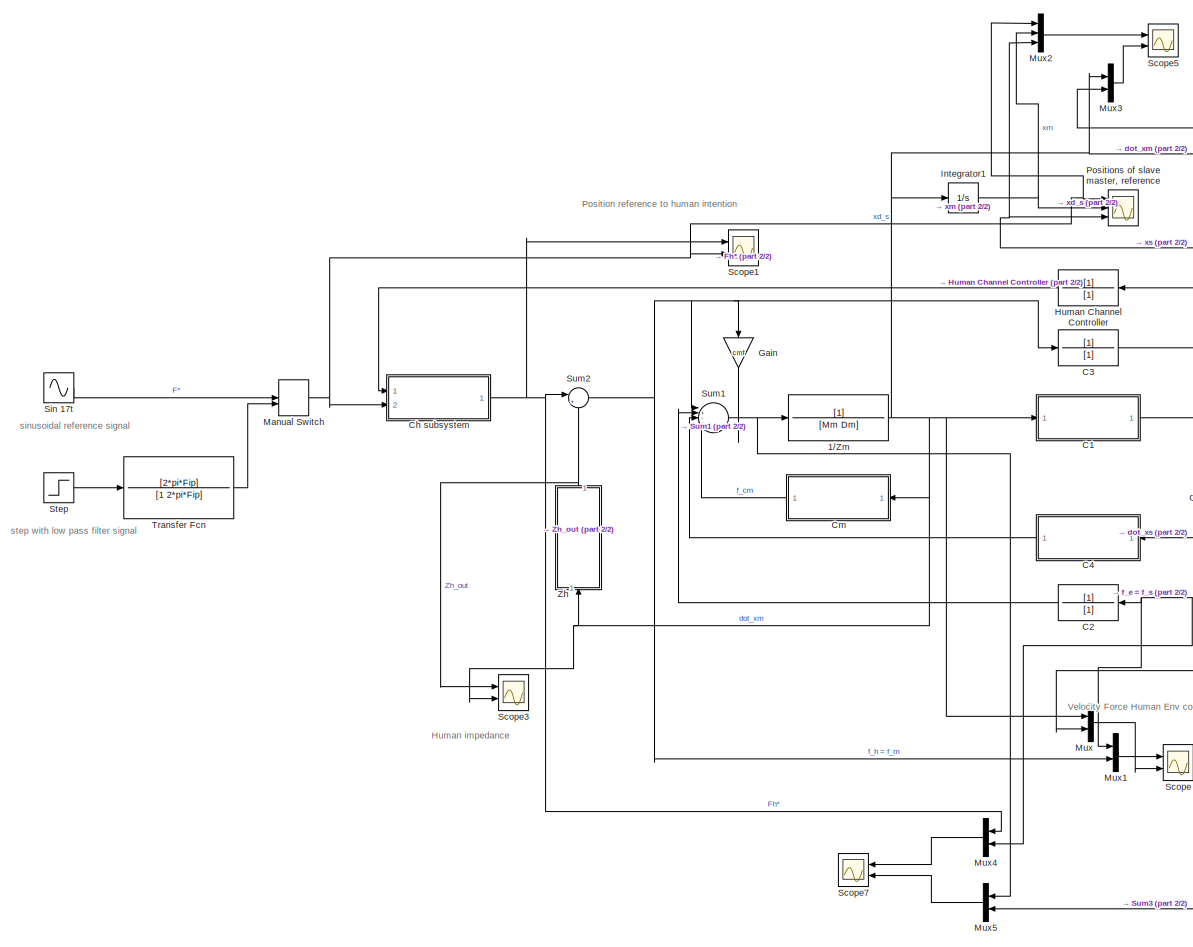
[diagram: root canvas - part 1/2, left side, full height]
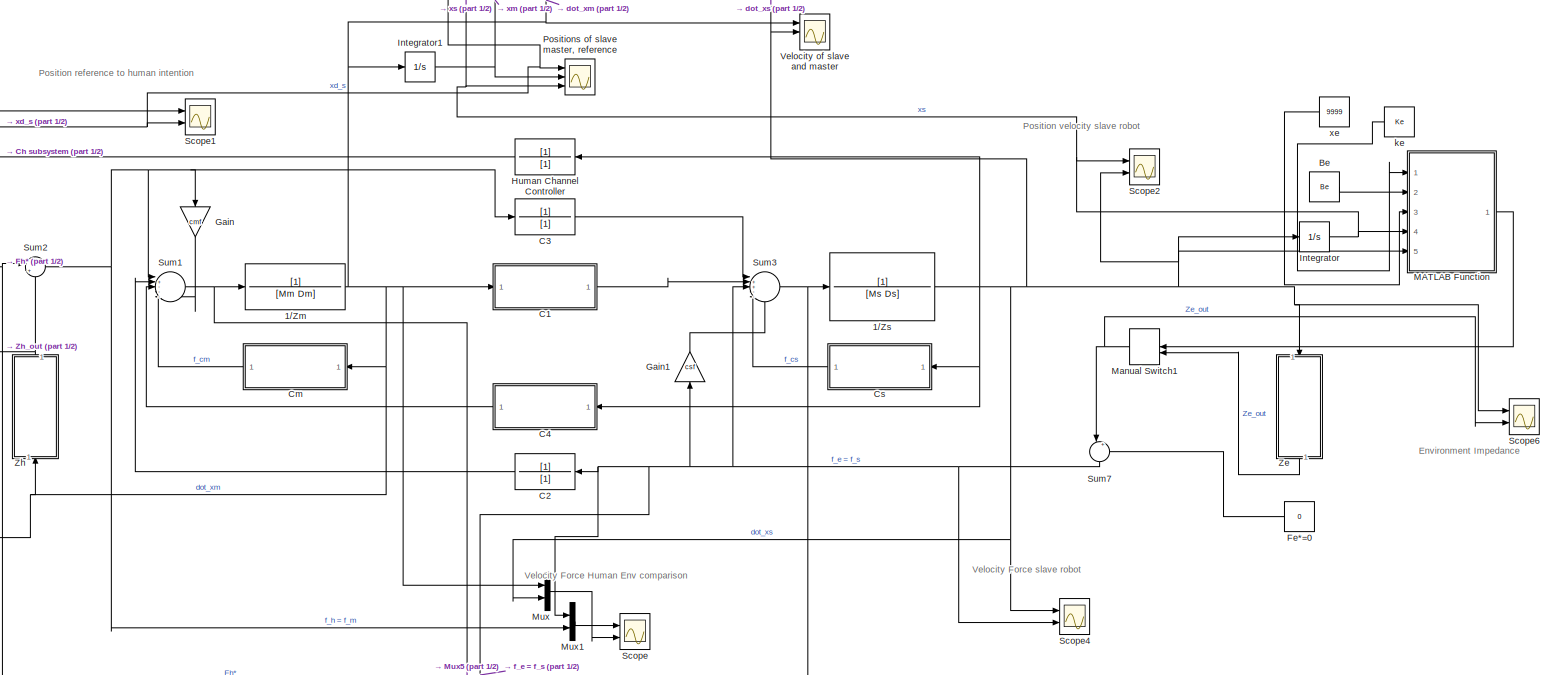
[diagram: root canvas - part 2/2, full width, middle band]
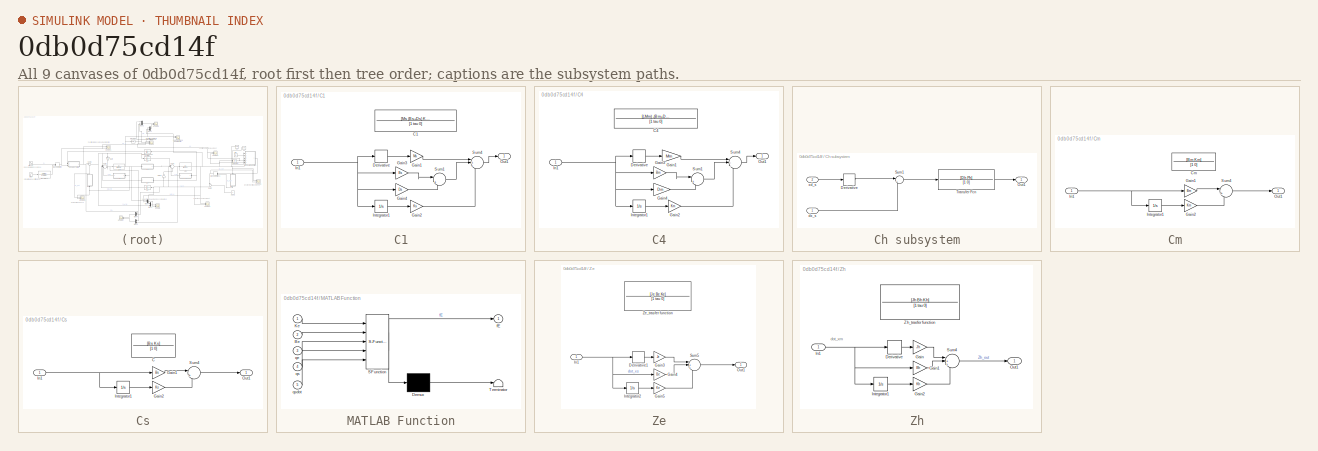
[diagram: thumbnail index - all 9 canvases of the model, root first then tree order]
MODEL slx_0db0d75cd14f
KIND model
CONFIG AbsTol = auto
CONFIG EnableMultiTasking = off
CONFIG FixedStep = Ts
CONFIG MaxStep = auto
CONFIG MinStep = auto
CONFIG RelTol = 1e-3
CONFIG SampleTimeConstraint = Unconstrained
CONFIG SolverName = VariableStepAuto
CONFIG StartTime = 0.0
CONFIG StopTime = 4.0
BLOCK [TransferFcn] 1//Zm
  Denominator = [Mm Dm]
  NameLocation = top
BLOCK [TransferFcn] 1//Zs
  Denominator = [Ms Ds]
  NameLocation = top
BLOCK [Constant] Be
  NameLocation = top
  Value = Be
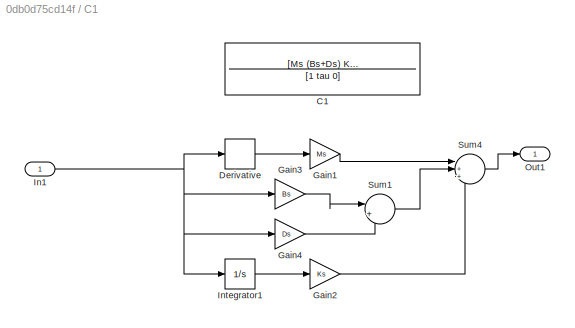
BLOCK [SubSystem] C1
  Ports = [1, 1]
  RequestExecContextInheritance = off
BLOCK [TransferFcn] C1/C1
  Commented = on
  Denominator = [1 tau 0]
  Numerator = [Ms (Bs+Ds) Ks]
BLOCK [Derivative] C1/Derivative
BLOCK [Gain] C1/Gain1
  Gain = Ms
BLOCK [Gain] C1/Gain2
  Gain = Ks
BLOCK [Gain] C1/Gain3
  Gain = Bs
BLOCK [Gain] C1/Gain4
  Gain = Ds
BLOCK [Inport] C1/In1
BLOCK [Integrator] C1/Integrator1
  Ports = [1, 1]
BLOCK [Outport] C1/Out1
BLOCK [Sum] C1/Sum1
  Inputs = |++
  Ports = [2, 1]
BLOCK [Sum] C1/Sum4
  Inputs = |+++
  Ports = [3, 1]
BLOCK [TransferFcn] C2
  Denominator = [1]
BLOCK [TransferFcn] C3
  Denominator = [1]
  NameLocation = top
BLOCK [SubSystem] C4
  NameLocation = top
  Ports = [1, 1]
  RequestExecContextInheritance = off
BLOCK [TransferFcn] C4/C4
  Commented = on
  Denominator = [1 tau 0]
  NameLocation = top
  Numerator = [(-Mm) -(Bm+Dm) -Km]
BLOCK [Derivative] C4/Derivative
BLOCK [Gain] C4/Gain1
  Gain = Mm
BLOCK [Gain] C4/Gain2
  Gain = Km
BLOCK [Gain] C4/Gain3
  Gain = Bm
BLOCK [Gain] C4/Gain4
  Gain = Dm
BLOCK [Inport] C4/In1
BLOCK [Integrator] C4/Integrator1
  Ports = [1, 1]
BLOCK [Outport] C4/Out1
BLOCK [Sum] C4/Sum1
  Inputs = |++
  Ports = [2, 1]
BLOCK [Sum] C4/Sum4
  Inputs = |---
  Ports = [3, 1]
BLOCK [SubSystem] Ch subsystem
  Ports = [2, 1]
  RequestExecContextInheritance = off
BLOCK [Derivative] Ch subsystem/Derivative
BLOCK [Outport] Ch subsystem/Out1
BLOCK [Sum] Ch subsystem/Sum1
  Inputs = |+-
  Ports = [2, 1]
BLOCK [TransferFcn] Ch subsystem/Transfer Fcn
  Denominator = [1 0]
  Numerator = [Dh Ph]
BLOCK [Inport] Ch subsystem/dx_s
BLOCK [Inport] Ch subsystem/xd_s
  Port = 2
BLOCK [SubSystem] Cm
  NameLocation = top
  Ports = [1, 1]
  RequestExecContextInheritance = off
BLOCK [TransferFcn] Cm/Cm
  Commented = on
  Denominator = [1 0]
  Numerator = [Bm Km]
BLOCK [Gain] Cm/Gain1
  Gain = Bm
BLOCK [Gain] Cm/Gain2
  Gain = Km
BLOCK [Inport] Cm/In1
BLOCK [Integrator] Cm/Integrator1
  Ports = [1, 1]
BLOCK [Outport] Cm/Out1
BLOCK [Sum] Cm/Sum4
  Inputs = |++
  Ports = [2, 1]
BLOCK [SubSystem] Cs
  NameLocation = top
  Ports = [1, 1]
  RequestExecContextInheritance = off
BLOCK [TransferFcn] Cs/C
  Commented = on
  Denominator = [1 0]
  Numerator = [Bs Ks]
BLOCK [Gain] Cs/Gain1
  Gain = Bs
BLOCK [Gain] Cs/Gain2
  Gain = Ks
BLOCK [Inport] Cs/In1
BLOCK [Integrator] Cs/Integrator1
  Ports = [1, 1]
BLOCK [Outport] Cs/Out1
BLOCK [Sum] Cs/Sum4
  Inputs = |++
  Ports = [2, 1]
BLOCK [Constant] Fe*=0
  Value = 0
BLOCK [Gain] Gain
  Gain = cmf
  NameLocation = left
BLOCK [Gain] Gain1
  Gain = csf
  NameLocation = right
BLOCK [TransferFcn] Human Channel Controller
  Denominator = [1]
  NameLocation = top
BLOCK [Integrator] Integrator
  Ports = [1, 1]
BLOCK [Integrator] Integrator1
  Ports = [1, 1]
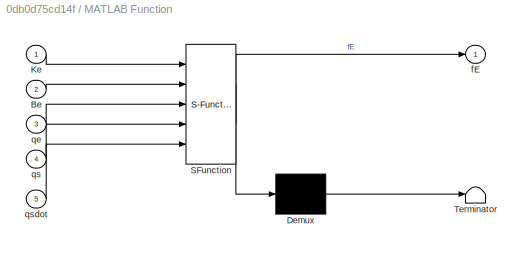
BLOCK [SubSystem] MATLAB Function
  ErrorFcn = Stateflow.Translate.translate
  PermitHierarchicalResolution = ExplicitOnly
  Ports = [5, 1]
  RequestExecContextInheritance = off
  SFBlockType = MATLAB Function
  TreatAsAtomicUnit = on
BLOCK [Demux] MATLAB Function/ Demux 
  Outputs = 1
  Ports = [1, 1]
BLOCK [S-Function] MATLAB Function/ SFunction 
  EnableBusSupport = on
  FunctionName = sf_sfun
  PortCounts = [5 2]
  Ports = [5, 2]
  SFcnIsStateOwnerBlock = off
  SFunctionDeploymentMode = off
  Tag = Stateflow S-Function 2
BLOCK [Terminator] MATLAB Function/ Terminator 
BLOCK [Inport] MATLAB Function/Be
  Port = 2
BLOCK [Inport] MATLAB Function/Ke
BLOCK [Outport] MATLAB Function/fE
BLOCK [Inport] MATLAB Function/qe
  Port = 3
BLOCK [Inport] MATLAB Function/qs
  Port = 4
BLOCK [Inport] MATLAB Function/qsdot
  Port = 5
BLOCK [ManualSwitch] Manual Switch
  CurrentSetting = 0
BLOCK [ManualSwitch] Manual Switch1
  CurrentSetting = 0
  NameLocation = top
BLOCK [Mux] Mux
  DisplayOption = bar
  Inputs = 2
  Ports = [2, 1]
BLOCK [Mux] Mux1
  DisplayOption = bar
  Inputs = 2
  Ports = [2, 1]
BLOCK [Mux] Mux2
  DisplayOption = bar
  Inputs = 3
  Ports = [3, 1]
BLOCK [Mux] Mux3
  DisplayOption = bar
  Inputs = 2
  Ports = [2, 1]
BLOCK [Mux] Mux4
  DisplayOption = bar
  Inputs = 2
  NameLocation = top
  Ports = [2, 1]
BLOCK [Mux] Mux5
  DisplayOption = bar
  Inputs = 2
  NameLocation = top
  Ports = [2, 1]
BLOCK [Scope] Positions of slave master, reference
  Floating = off
  NumInputPorts = 3
  Ports = [3]
  ScopeSpecificationString = Simulink.scopes.TimeScopeBlockCfg('CurrentConfiguration', extmgr.ConfigurationSet(extmgr.Configuration('Core','General UI',true),extmgr.Configuration('Core','Source UI',true),extmgr.Configuration('Sources','WiredSimulink',true,'DataLoggingVariableName','ScopeData1'),extmgr.Configuration('Visuals','Time Domain',true,'SerializedDisplays',{struct('MinYLimReal','-1.25','MaxYLimReal','1.25','YLabelReal...<+1538ch>
BLOCK [Scope] Scope
  Floating = off
  NumInputPorts = 2
  Ports = [2]
  ScopeSpecificationString = Simulink.scopes.TimeScopeBlockCfg('CurrentConfiguration', extmgr.ConfigurationSet(extmgr.Configuration('Core','General UI',true),extmgr.Configuration('Core','Source UI',true),extmgr.Configuration('Sources','WiredSimulink',true),extmgr.Configuration('Visuals','Time Domain',true,'SerializedDisplays',{struct('MinYLimReal','-532.62107','MaxYLimReal','1538.98785','YLabelReal','','MinYLimMag',' 0.00000'...<+2117ch>
BLOCK [Scope] Scope1
  Floating = off
  NumInputPorts = 2
  Ports = [2]
  ScopeSpecificationString = Simulink.scopes.TimeScopeBlockCfg('CurrentConfiguration', extmgr.ConfigurationSet(extmgr.Configuration('Core','General UI',true),extmgr.Configuration('Core','Source UI',true),extmgr.Configuration('Sources','WiredSimulink',true,'DataLoggingVariableName','ScopeData1'),extmgr.Configuration('Visuals','Time Domain',true,'SerializedDisplays',{struct('MinYLimReal','-62.49999','MaxYLimReal','62.5','YLabel...<+1548ch>
BLOCK [Scope] Scope2
  Floating = off
  NumInputPorts = 2
  Ports = [2]
  ScopeSpecificationString = Simulink.scopes.TimeScopeBlockCfg('CurrentConfiguration', extmgr.ConfigurationSet(extmgr.Configuration('Core','General UI',true),extmgr.Configuration('Core','Source UI',true),extmgr.Configuration('Sources','WiredSimulink',true,'DataLoggingVariableName','ScopeData2'),extmgr.Configuration('Visuals','Time Domain',true,'SerializedDisplays',{struct('MinYLimReal','-0.33462','MaxYLimReal','0.33352','YLab...<+2108ch>
BLOCK [Scope] Scope3
  Floating = off
  NumInputPorts = 2
  Ports = [2]
  ScopeSpecificationString = Simulink.scopes.TimeScopeBlockCfg('CurrentConfiguration', extmgr.ConfigurationSet(extmgr.Configuration('Core','General UI',true),extmgr.Configuration('Core','Source UI',true),extmgr.Configuration('Sources','WiredSimulink',true,'DataLoggingVariableName','ScopeData1'),extmgr.Configuration('Visuals','Time Domain',true,'SerializedDisplays',{struct('MinYLimReal','-2730.40661','MaxYLimReal','7284.05037'...<+2134ch>
BLOCK [Scope] Scope4
  Floating = off
  NumInputPorts = 2
  Ports = [2]
  ScopeSpecificationString = Simulink.scopes.TimeScopeBlockCfg('CurrentConfiguration', extmgr.ConfigurationSet(extmgr.Configuration('Core','General UI',true),extmgr.Configuration('Core','Source UI',true),extmgr.Configuration('Sources','WiredSimulink',true,'DataLoggingVariableName','ScopeData1'),extmgr.Configuration('Visuals','Time Domain',true,'SerializedDisplays',{struct('MinYLimReal','-7.24979','MaxYLimReal','7.39847','YLab...<+2126ch>
BLOCK [Scope] Scope5
  Floating = off
  NumInputPorts = 2
  Ports = [2]
  ScopeSpecificationString = Simulink.scopes.TimeScopeBlockCfg('CurrentConfiguration', extmgr.ConfigurationSet(extmgr.Configuration('Core','General UI',true,'FigureColor',[0.941176470588235 0.941176470588235 0.941176470588235]),extmgr.Configuration('Core','Source UI',true),extmgr.Configuration('Sources','WiredSimulink',true,'DataLoggingVariableName','ScopeData2'),extmgr.Configuration('Visuals','Time Domain',true,'SerializedDi...<+2796ch>
BLOCK [Scope] Scope6
  Floating = off
  NumInputPorts = 2
  Ports = [2]
  ScopeSpecificationString = Simulink.scopes.TimeScopeBlockCfg('CurrentConfiguration', extmgr.ConfigurationSet(extmgr.Configuration('Core','General UI',true),extmgr.Configuration('Core','Source UI',true),extmgr.Configuration('Sources','WiredSimulink',true,'DataLoggingVariableName','ScopeData2'),extmgr.Configuration('Visuals','Time Domain',true,'SerializedDisplays',{struct('MinYLimReal','-1.1305','MaxYLimReal','2.02022','YLabe...<+2126ch>
BLOCK [Scope] Scope7
  Floating = off
  NameLocation = top
  NumInputPorts = 2
  Ports = [2]
  ScopeSpecificationString = Simulink.scopes.TimeScopeBlockCfg('CurrentConfiguration', extmgr.ConfigurationSet(extmgr.Configuration('Core','General UI',true,'FigureColor',[0.941176470588235 0.941176470588235 0.941176470588235]),extmgr.Configuration('Core','Source UI',true),extmgr.Configuration('Sources','WiredSimulink',true,'DataLoggingVariableName','ScopeData1'),extmgr.Configuration('Visuals','Time Domain',true,'SerializedDi...<+2779ch>
BLOCK [Sin] Sin 17t
  Amplitude = A
  Frequency = 2*pi*Fc
  Ports = [0, 1]
  SampleTime = 0
BLOCK [Step] Step
  After = A
  SampleTime = 0
BLOCK [Sum] Sum1
  Inputs = |+---+
  Ports = [5, 1]
BLOCK [Sum] Sum2
  Inputs = |+-
  Ports = [2, 1]
BLOCK [Sum] Sum3
  Inputs = |++---
  Ports = [5, 1]
BLOCK [Sum] Sum7
  Inputs = |++
  NameLocation = right
  Ports = [2, 1]
BLOCK [TransferFcn] Transfer Fcn
  Denominator = [1 2*pi*Fip]
  Numerator = [2*pi*Fip]
BLOCK [Scope] Velocity of slave and master
  Floating = off
  NumInputPorts = 3
  Ports = [3]
  ScopeSpecificationString = Simulink.scopes.TimeScopeBlockCfg('CurrentConfiguration', extmgr.ConfigurationSet(extmgr.Configuration('Core','General UI',true),extmgr.Configuration('Core','Source UI',true),extmgr.Configuration('Sources','WiredSimulink',true,'DataLoggingVariableName','ScopeData2'),extmgr.Configuration('Visuals','Time Domain',true,'SerializedDisplays',{struct('MinYLimReal','-7.34585','MaxYLimReal','7.40915','YLab...<+1573ch>
BLOCK [SubSystem] Ze
  NameLocation = left
  Ports = [1, 1]
  RequestExecContextInheritance = off
BLOCK [Derivative] Ze/Derivative1
BLOCK [Gain] Ze/Gain3
  Gain = Je
BLOCK [Gain] Ze/Gain4
  Gain = Be
BLOCK [Gain] Ze/Gain5
  Gain = Ke
BLOCK [Inport] Ze/In1
BLOCK [Integrator] Ze/Integrator2
  Ports = [1, 1]
BLOCK [Outport] Ze/Out1
BLOCK [Sum] Ze/Sum5
  Inputs = |+++
  Ports = [3, 1]
BLOCK [TransferFcn] Ze/Ze_trasfer function
  Commented = on
  Denominator = [1 tau 0]
  NameLocation = right
  Numerator = [Je Be Ke]
BLOCK [SubSystem] Zh
  NameLocation = right
  Ports = [1, 1]
  RequestExecContextInheritance = off
BLOCK [Derivative] Zh/Derivative
BLOCK [Gain] Zh/Gain
  Gain = Jh
BLOCK [Gain] Zh/Gain1
  Gain = Bh
BLOCK [Gain] Zh/Gain2
  Gain = Kh
BLOCK [Inport] Zh/In1
BLOCK [Integrator] Zh/Integrator1
  Ports = [1, 1]
BLOCK [Outport] Zh/Out1
BLOCK [Sum] Zh/Sum4
  Inputs = |+++
  Ports = [3, 1]
BLOCK [TransferFcn] Zh/Zh_trasfer function
  Commented = on
  Denominator = [1 tau 0]
  NameLocation = right
  Numerator = [Jh Bh Kh]
BLOCK [Constant] ke
  Value = Ke
BLOCK [Constant] xe
  Value = 9999
ANNOTATION (root): sinusoidal reference signal
ANNOTATION (root): step with low pass filter signal
ANNOTATION (root): Environment Impedance
ANNOTATION (root): Human impedance
ANNOTATION (root): Position reference to human intention
ANNOTATION (root): Position velocity slave robot
ANNOTATION (root): Velocity Force Human Env comparison
ANNOTATION (root): Velocity Force slave robot
ANNOTATION Zh: dot_xm
NET 1//Zm:1 -> C1:1, Cm:1, Integrator1:1, Mux3:1, Mux:1, Scope3:2, Velocity of slave and master:1, Zh:1
NET 1//Zs:1 -> C4:1, Cs:1, Human Channel Controller:1, Integrator:1, MATLAB Function:5, Mux3:2, Mux:2, Scope2:2, Scope4:1, Scope6:1, Velocity of slave and master:2, Ze:1
LINE Be:1 -> MATLAB Function:2
LINE C1/Derivative:1 -> C1/Gain1:1
LINE C1/Gain1:1 -> C1/Sum4:1
LINE C1/Gain2:1 -> C1/Sum4:3
LINE C1/Gain3:1 -> C1/Sum1:1
LINE C1/Gain4:1 -> C1/Sum1:2
NET C1/In1:1 -> C1/Derivative:1, C1/Gain3:1, C1/Gain4:1, C1/Integrator1:1
LINE C1/Integrator1:1 -> C1/Gain2:1
LINE C1/Sum1:1 -> C1/Sum4:2
LINE C1/Sum4:1 -> C1/Out1:1
LINE C1:1 -> Sum3:2
LINE C2:1 -> Sum1:2
LINE C3:1 -> Sum3:1
LINE C4/Derivative:1 -> C4/Gain1:1
LINE C4/Gain1:1 -> C4/Sum4:1
LINE C4/Gain2:1 -> C4/Sum4:3
LINE C4/Gain3:1 -> C4/Sum1:1
LINE C4/Gain4:1 -> C4/Sum1:2
NET C4/In1:1 -> C4/Derivative:1, C4/Gain3:1, C4/Gain4:1, C4/Integrator1:1
LINE C4/Integrator1:1 -> C4/Gain2:1
LINE C4/Sum1:1 -> C4/Sum4:2
LINE C4/Sum4:1 -> C4/Out1:1
LINE C4:1 -> Sum1:3
LINE Ch subsystem/Derivative:1 -> Ch subsystem/Sum1:1
LINE Ch subsystem/Sum1:1 -> Ch subsystem/Transfer Fcn:1
LINE Ch subsystem/Transfer Fcn:1 -> Ch subsystem/Out1:1
LINE Ch subsystem/dx_s:1 -> Ch subsystem/Sum1:2
LINE Ch subsystem/xd_s:1 -> Ch subsystem/Derivative:1
NET Ch subsystem:1 -> Mux4:1, Scope1:1, Sum2:1
LINE Cm/Gain1:1 -> Cm/Sum4:1
LINE Cm/Gain2:1 -> Cm/Sum4:2
NET Cm/In1:1 -> Cm/Gain1:1, Cm/Integrator1:1
LINE Cm/Integrator1:1 -> Cm/Gain2:1
LINE Cm/Sum4:1 -> Cm/Out1:1
LINE Cm:1 -> Sum1:4
LINE Cs/Gain1:1 -> Cs/Sum4:1
LINE Cs/Gain2:1 -> Cs/Sum4:2
NET Cs/In1:1 -> Cs/Gain1:1, Cs/Integrator1:1
LINE Cs/Integrator1:1 -> Cs/Gain2:1
LINE Cs/Sum4:1 -> Cs/Out1:1
LINE Cs:1 -> Sum3:4
LINE Fe*=0:1 -> Sum7:2
LINE Gain1:1 -> Sum3:5
LINE Gain:1 -> Sum1:5
LINE Human Channel Controller:1 -> Ch subsystem:1
NET Integrator1:1 -> Mux2:2, Positions of slave master, reference:2
NET Integrator:1 -> MATLAB Function:4, Mux2:3, Positions of slave master, reference:3, Scope2:1
LINE MATLAB Function:1 -> Manual Switch1:1
NET Manual Switch1:1 -> Scope6:2, Sum7:1
NET Manual Switch:1 -> Ch subsystem:2, Mux2:1, Positions of slave master, reference:1, Scope1:2
LINE Mux1:1 -> Scope:1
LINE Mux2:1 -> Scope5:1
LINE Mux3:1 -> Scope5:2
LINE Mux4:1 -> Scope7:1
LINE Mux5:1 -> Scope7:2
LINE Mux:1 -> Scope:2
LINE Sin 17t:1 -> Manual Switch:1
LINE Step:1 -> Transfer Fcn:1
NET Sum1:1 -> 1//Zm:1, Mux5:1
NET Sum2:1 -> C3:1, Gain:1, Mux1:2, Sum1:1
NET Sum3:1 -> 1//Zs:1, Mux5:2
NET Sum7:1 -> C2:1, Gain1:1, Mux1:1, Mux4:2, Scope4:2, Sum3:3
LINE Transfer Fcn:1 -> Manual Switch:2
LINE Ze/Derivative1:1 -> Ze/Gain3:1
LINE Ze/Gain3:1 -> Ze/Sum5:1
LINE Ze/Gain4:1 -> Ze/Sum5:2
LINE Ze/Gain5:1 -> Ze/Sum5:3
NET Ze/In1:1 -> Ze/Derivative1:1, Ze/Gain4:1, Ze/Integrator2:1
LINE Ze/Integrator2:1 -> Ze/Gain5:1
LINE Ze/Sum5:1 -> Ze/Out1:1
LINE Ze:1 -> Manual Switch1:2
LINE Zh/Derivative:1 -> Zh/Gain:1
LINE Zh/Gain1:1 -> Zh/Sum4:2
LINE Zh/Gain2:1 -> Zh/Sum4:3
LINE Zh/Gain:1 -> Zh/Sum4:1
NET Zh/In1:1 -> Zh/Derivative:1, Zh/Gain1:1, Zh/Integrator1:1
LINE Zh/Integrator1:1 -> Zh/Gain2:1
LINE Zh/Sum4:1 -> Zh/Out1:1
NET Zh:1 -> Scope3:1, Sum2:2
LINE ke:1 -> MATLAB Function:1
LINE xe:1 -> MATLAB Function:3
note: NET lines group one-source signal fan-out (src -> all destinations, sorted); 1:1 wires keep LINE
CHART MATLAB Function states=1 transitions=1
  STATE_LABEL 'eML_blk_kernel()'
  STATE_LABEL 'SCRIPT:\nfunction fE = environment(Ke, Be, qe, qs, qsdot)\n    if qs > qe\n        fE = Ke * (qs - qe) + Be * qsdot;\n    else\n        fE = 0;\n    end\nend\n'
CHART  states=0 transitions=0
